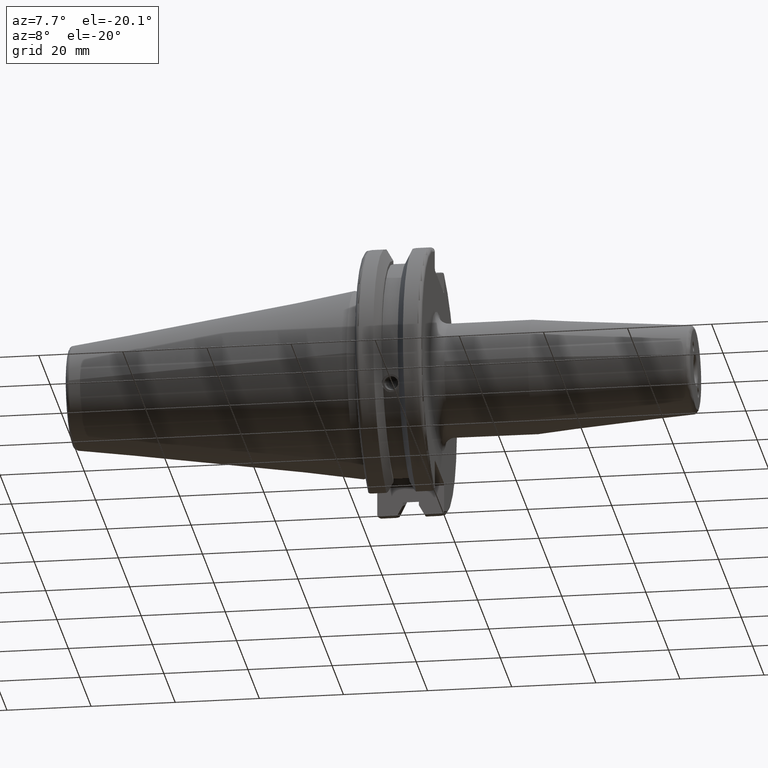
[diagram: clean part render]
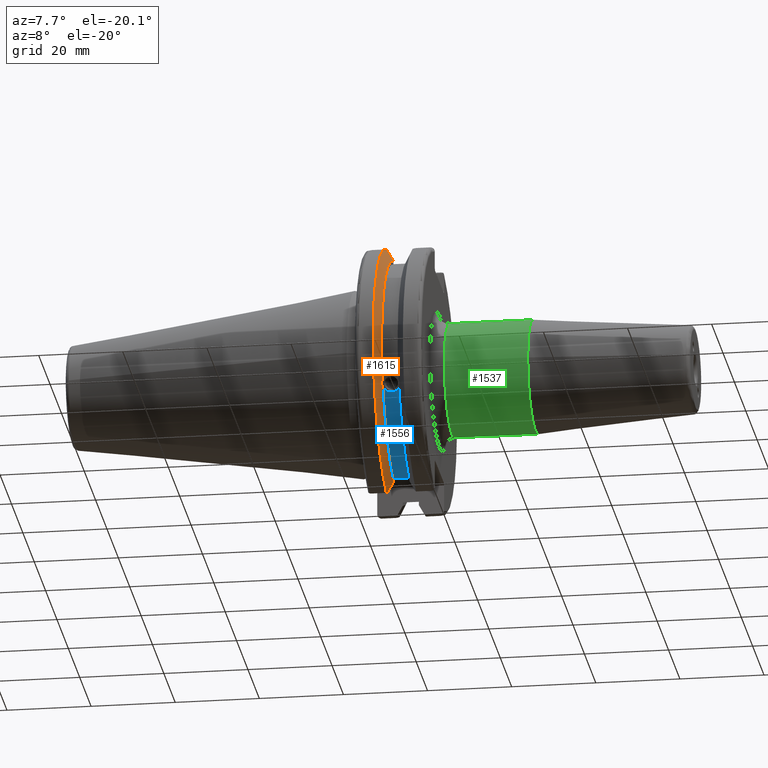
[diagram: same view with three faces highlighted in distinct colors, each labeled with its STEP entity id]
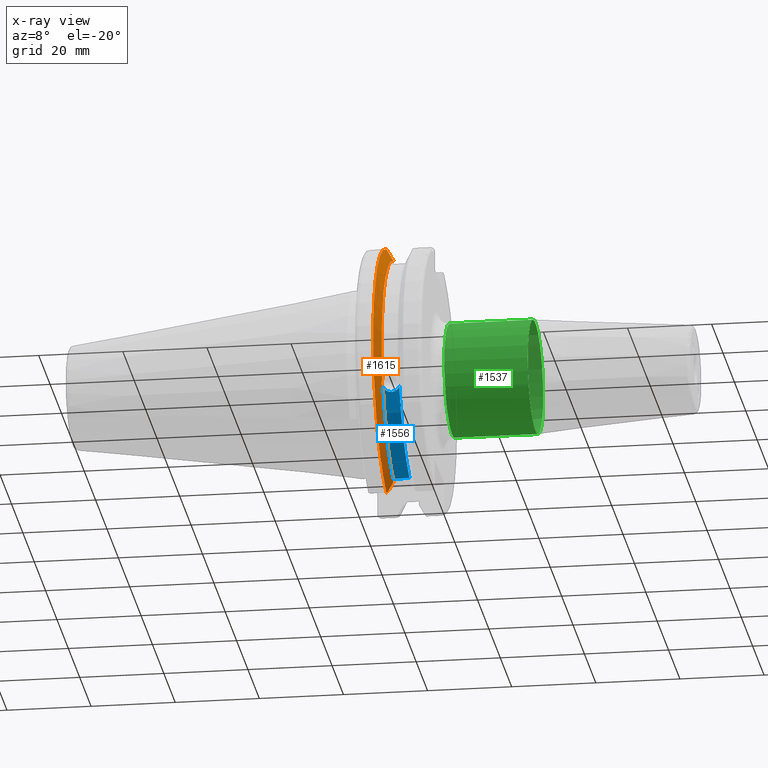
[diagram: x-ray of the same camera — body ghosted, the three highlighted faces saturated]
A machine part, auxiliary view with three faces highlighted in distinct colors.
The next image is the same camera in x-ray (body ghosted, the three faces saturated) — at least one of them is partly hidden behind the body in this view.
Their STEP definitions:

[orange] entity #1615 — the highlighted conical surface has half-angle 60 deg.
#25=(
BOUNDED_CURVE()
B_SPLINE_CURVE(2,(#2911,#2912,#2913),.UNSPECIFIED.,.F.,.F.)
B_SPLINE_CURVE_WITH_KNOTS((3,3),(0.,0.276549142796136),.UNSPECIFIED.)
CURVE()
GEOMETRIC_REPRESENTATION_ITEM()
RATIONAL_B_SPLINE_CURVE((1.,1.00095203903316,1.00031614444813))
REPRESENTATION_ITEM('')
);
#26=(
BOUNDED_CURVE()
B_SPLINE_CURVE(2,(#2923,#2924,#2925),.UNSPECIFIED.,.F.,.F.)
B_SPLINE_CURVE_WITH_KNOTS((3,3),(0.0550586467392022,0.33160778953585),
 .UNSPECIFIED.)
CURVE()
GEOMETRIC_REPRESENTATION_ITEM()
RATIONAL_B_SPLINE_CURVE((1.00031614445148,1.00095203904325,1.))
REPRESENTATION_ITEM('')
);
#27=(
BOUNDED_CURVE()
B_SPLINE_CURVE(2,(#2958,#2959,#2960),.UNSPECIFIED.,.F.,.F.)
B_SPLINE_CURVE_WITH_KNOTS((3,3),(0.,0.0639048713676282),.UNSPECIFIED.)
CURVE()
GEOMETRIC_REPRESENTATION_ITEM()
RATIONAL_B_SPLINE_CURVE((1.,1.00028444218284,1.00047644010574))
REPRESENTATION_ITEM('')
);
#28=(
BOUNDED_CURVE()
B_SPLINE_CURVE(2,(#2966,#2967,#2968),.UNSPECIFIED.,.F.,.F.)
B_SPLINE_CURVE_WITH_KNOTS((3,3),(0.329353533631205,0.393258405001025),
 .UNSPECIFIED.)
CURVE()
GEOMETRIC_REPRESENTATION_ITEM()
RATIONAL_B_SPLINE_CURVE((1.00047644010572,1.00028444218283,1.))
REPRESENTATION_ITEM('')
);
#37=B_SPLINE_CURVE_WITH_KNOTS('',3,(#2529,#2530,#2531,#2532,#2533,#2534,
#2535,#2536,#2537,#2538,#2539,#2540,#2541,#2542),.UNSPECIFIED.,.F.,.F.,
(4,2,2,2,2,2,4),(0.451995700189024,0.464547828547663,0.504528771685167,
0.544509714822672,0.584490657960178,0.624471601097683,0.63702372945632),
 .UNSPECIFIED.);
#263=FACE_OUTER_BOUND('',#371,.T.);
#371=EDGE_LOOP('',(#1501,#1502,#1503,#1504,#1505,#1506,#1507,#1508));
#600=CIRCLE('',#1717,28.9593772964944);
#622=CIRCLE('',#1773,31.75);
#640=CIRCLE('',#1824,28.9593772964944);
#693=VERTEX_POINT('',#2526);
#694=VERTEX_POINT('',#2528);
#711=VERTEX_POINT('',#2621);
#771=VERTEX_POINT('',#2908);
#772=VERTEX_POINT('',#2910);
#775=VERTEX_POINT('',#2922);
#779=VERTEX_POINT('',#2956);
#780=VERTEX_POINT('',#2962);
#868=EDGE_CURVE('',#694,#693,#37,.T.);
#892=EDGE_CURVE('',#694,#711,#600,.T.);
#975=EDGE_CURVE('',#772,#771,#25,.T.);
#981=EDGE_CURVE('',#775,#711,#26,.T.);
#989=EDGE_CURVE('',#779,#771,#27,.T.);
#991=EDGE_CURVE('',#779,#780,#622,.T.);
#992=EDGE_CURVE('',#775,#780,#28,.T.);
#1036=EDGE_CURVE('',#772,#693,#640,.T.);
#1501=ORIENTED_EDGE('',*,*,#868,.T.);
#1502=ORIENTED_EDGE('',*,*,#1036,.F.);
#1503=ORIENTED_EDGE('',*,*,#975,.T.);
#1504=ORIENTED_EDGE('',*,*,#989,.F.);
#1505=ORIENTED_EDGE('',*,*,#991,.T.);
#1506=ORIENTED_EDGE('',*,*,#992,.F.);
#1507=ORIENTED_EDGE('',*,*,#981,.T.);
#1508=ORIENTED_EDGE('',*,*,#892,.F.);
#1526=CONICAL_SURFACE('',#1823,30.3546886482472,1.0471975511966);
#1615=ADVANCED_FACE('',(#263),#1526,.T.);
#1717=AXIS2_PLACEMENT_3D('',#2622,#2016,#2017);
#1773=AXIS2_PLACEMENT_3D('',#2964,#2169,#2170);
#1823=AXIS2_PLACEMENT_3D('',#3084,#2290,#2291);
#1824=AXIS2_PLACEMENT_3D('',#3085,#2292,#2293);
#2016=DIRECTION('center_axis',(1.,0.,0.));
#2017=DIRECTION('ref_axis',(0.,0.,-1.));
#2169=DIRECTION('center_axis',(1.,0.,0.));
#2170=DIRECTION('ref_axis',(0.,0.,-1.));
#2290=DIRECTION('center_axis',(-1.,0.,0.));
#2291=DIRECTION('ref_axis',(0.,-1.,-1.22464679914735E-16));
#2292=DIRECTION('center_axis',(1.,0.,0.));
#2293=DIRECTION('ref_axis',(0.,0.,-1.));
#2526=CARTESIAN_POINT('',(9.2191,-27.4956274489925,-9.09043478536245));
#2528=CARTESIAN_POINT('',(9.2191,-26.9060914640648,-10.7101715919071));
#2529=CARTESIAN_POINT('Ctrl Pts',(9.2191,-26.9060914640648,-10.7101715919071));
#2530=CARTESIAN_POINT('Ctrl Pts',(9.20497959280038,-26.9406927482839,-10.6893765730703));
#2531=CARTESIAN_POINT('Ctrl Pts',(9.19150701821433,-26.9744191989197,-10.6676007180673));
#2532=CARTESIAN_POINT('Ctrl Pts',(9.13811855884095,-27.1113422433189,-10.5723885976054));
#2533=CARTESIAN_POINT('Ctrl Pts',(9.09998029158246,-27.2180531796526,-10.4801333026531));
#2534=CARTESIAN_POINT('Ctrl Pts',(9.04778935539424,-27.3968610665578,-10.2639559818059));
#2535=CARTESIAN_POINT('Ctrl Pts',(9.0341,-27.4684373304961,-10.139516340139));
#2536=CARTESIAN_POINT('Ctrl Pts',(9.0341,-27.559599249844,-9.8890510252165));
#2537=CARTESIAN_POINT('Ctrl Pts',(9.04778935539424,-27.5847569104122,-9.74771639360671));
#2538=CARTESIAN_POINT('Ctrl Pts',(9.09998029158246,-27.5867382255984,-9.46717946402648));
#2539=CARTESIAN_POINT('Ctrl Pts',(9.13811855884095,-27.5642934663232,-9.32791534028655));
#2540=CARTESIAN_POINT('Ctrl Pts',(9.19150701821434,-27.5206055003512,-9.16696618806877));
#2541=CARTESIAN_POINT('Ctrl Pts',(9.20497959280038,-27.5087667900418,-9.12860597076217));
#2542=CARTESIAN_POINT('Ctrl Pts',(9.2191,-27.4956274489925,-9.09043478536245));
#2621=CARTESIAN_POINT('',(9.2191,-8.19,-27.7771386827498));
#2622=CARTESIAN_POINT('Origin',(9.2191,0.,0.));
#2908=CARTESIAN_POINT('',(7.88668530351257,-8.19,30.1755016258903));
#2910=CARTESIAN_POINT('',(9.2191,-8.19,27.7771386827498));
#2911=CARTESIAN_POINT('Ctrl Pts',(9.2191,-8.19,27.7771386827498));
#2912=CARTESIAN_POINT('Ctrl Pts',(8.58046356152393,-8.19,28.9303689539705));
#2913=CARTESIAN_POINT('Ctrl Pts',(7.88668530351257,-8.19,30.1755016258903));
#2922=CARTESIAN_POINT('',(7.88668530351256,-8.19,-30.1755016258903));
#2923=CARTESIAN_POINT('Ctrl Pts',(7.88668530351256,-8.19,-30.1755016258903));
#2924=CARTESIAN_POINT('Ctrl Pts',(8.5804635615235,-8.19,-28.9303689539712));
#2925=CARTESIAN_POINT('Ctrl Pts',(9.2191,-8.19,-27.7771386827498));
#2956=CARTESIAN_POINT('',(7.60793323092436,-8.67204822802685,30.5427254764662));
#2958=CARTESIAN_POINT('Ctrl Pts',(7.60793323092436,-8.67204822802686,30.5427254764662));
#2959=CARTESIAN_POINT('Ctrl Pts',(7.74899148121626,-8.42917748262648,30.357706789263));
#2960=CARTESIAN_POINT('Ctrl Pts',(7.88668530351257,-8.19,30.1755016258903));
#2962=CARTESIAN_POINT('',(7.60793323092436,-8.67204822802685,-30.5427254764662));
#2964=CARTESIAN_POINT('Origin',(7.60793323092436,0.,0.));
#2966=CARTESIAN_POINT('Ctrl Pts',(7.88668530351256,-8.19,-30.1755016258903));
#2967=CARTESIAN_POINT('Ctrl Pts',(7.74899148121159,-8.42917748263467,-30.3577067892692));
#2968=CARTESIAN_POINT('Ctrl Pts',(7.60793323092435,-8.67204822802687,-30.5427254764662));
#3084=CARTESIAN_POINT('Origin',(8.41351661546218,0.,0.));
#3085=CARTESIAN_POINT('Origin',(9.2191,0.,0.));

[blue] entity #1556 — the highlighted cylindrical surface (partial cylindrical patch) has radius 28.15 mm, axis along (1, 0, 0).
#38=B_SPLINE_CURVE_WITH_KNOTS('',3,(#2546,#2547,#2548,#2549,#2550,#2551,
#2552,#2553,#2554,#2555,#2556,#2557,#2558,#2559,#2560),.UNSPECIFIED.,.F.,
 .F.,(4,2,2,3,2,2,4),(-0.231446873660085,-0.158271583089134,-0.079135791544567,
0.,0.0791357915445672,0.158271583089134,0.231446873660466),
 .UNSPECIFIED.);
#158=CYLINDRICAL_SURFACE('',#1714,28.15);
#204=FACE_OUTER_BOUND('',#304,.T.);
#304=EDGE_LOOP('',(#1189,#1190,#1191,#1192));
#406=LINE('',#2619,#502);
#502=VECTOR('',#2013,10.);
#598=CIRCLE('',#1713,28.15);
#599=CIRCLE('',#1715,28.15);
#695=VERTEX_POINT('',#2543);
#696=VERTEX_POINT('',#2545);
#709=VERTEX_POINT('',#2613);
#710=VERTEX_POINT('',#2617);
#870=EDGE_CURVE('',#696,#695,#38,.T.);
#888=EDGE_CURVE('',#696,#709,#598,.T.);
#890=EDGE_CURVE('',#695,#710,#599,.T.);
#891=EDGE_CURVE('',#710,#709,#406,.T.);
#1189=ORIENTED_EDGE('',*,*,#870,.T.);
#1190=ORIENTED_EDGE('',*,*,#890,.T.);
#1191=ORIENTED_EDGE('',*,*,#891,.T.);
#1192=ORIENTED_EDGE('',*,*,#888,.F.);
#1556=ADVANCED_FACE('',(#204),#158,.T.);
#1713=AXIS2_PLACEMENT_3D('',#2614,#2006,#2007);
#1714=AXIS2_PLACEMENT_3D('',#2616,#2009,#2010);
#1715=AXIS2_PLACEMENT_3D('',#2618,#2011,#2012);
#2006=DIRECTION('center_axis',(1.,0.,0.));
#2007=DIRECTION('ref_axis',(0.,0.,-1.));
#2009=DIRECTION('center_axis',(1.,0.,0.));
#2010=DIRECTION('ref_axis',(0.,1.,0.));
#2011=DIRECTION('center_axis',(1.,0.,0.));
#2012=DIRECTION('ref_axis',(0.,0.,-1.));
#2013=DIRECTION('',(1.,0.,0.));
#2543=CARTESIAN_POINT('',(9.2191,-26.1451788594704,-10.4332220529567));
#2545=CARTESIAN_POINT('',(13.0491,-26.1451788594704,-10.4332220529567));
#2546=CARTESIAN_POINT('Ctrl Pts',(13.0491,-26.1451788594704,-10.4332220529567));
#2547=CARTESIAN_POINT('Ctrl Pts',(12.9428694290343,-26.0576536126147,-10.6525563316815));
#2548=CARTESIAN_POINT('Ctrl Pts',(12.791379862294,-25.9751489313128,-10.8509873904882));
#2549=CARTESIAN_POINT('Ctrl Pts',(12.4326293734259,-25.8346412777187,-11.1816210830117));
#2550=CARTESIAN_POINT('Ctrl Pts',(12.1965549887012,-25.7695111693635,-11.3298867884858));
#2551=CARTESIAN_POINT('Ctrl Pts',(11.6791874573612,-25.6822868299377,-11.5262389251846));
#2552=CARTESIAN_POINT('Ctrl Pts',(11.3978859718152,-25.6603958057616,-11.5743935949859));
#2553=CARTESIAN_POINT('Ctrl Pts',(11.1341,-25.6603958057616,-11.5743935949859));
#2554=CARTESIAN_POINT('Ctrl Pts',(10.8703140281848,-25.6603958057616,-11.5743935949859));
#2555=CARTESIAN_POINT('Ctrl Pts',(10.5890125426388,-25.6822868299377,-11.5262389251846));
#2556=CARTESIAN_POINT('Ctrl Pts',(10.0716450112988,-25.7695111693635,-11.3298867884858));
#2557=CARTESIAN_POINT('Ctrl Pts',(9.83557062657411,-25.8346412777187,-11.1816210830117));
#2558=CARTESIAN_POINT('Ctrl Pts',(9.4768201377051,-25.9751489313131,-10.8509873904873));
#2559=CARTESIAN_POINT('Ctrl Pts',(9.32533057097183,-26.0576536126096,-10.6525563316942));
#2560=CARTESIAN_POINT('Ctrl Pts',(9.2191,-26.1451788594704,-10.4332220529567));
#2613=CARTESIAN_POINT('',(13.0491,-8.19,-26.932255754021));
#2614=CARTESIAN_POINT('Origin',(13.0491,0.,0.));
#2616=CARTESIAN_POINT('Origin',(11.1341,0.,0.));
#2617=CARTESIAN_POINT('',(9.2191,-8.19,-26.932255754021));
#2618=CARTESIAN_POINT('Origin',(9.2191,0.,0.));
#2619=CARTESIAN_POINT('',(11.1341,-8.19,-26.932255754021));

[green] entity #1537 — the highlighted cylindrical surface (bore or boss wall) has radius 13.5 mm, axis along (1, 0, 0).
#148=CYLINDRICAL_SURFACE('',#1668,13.5);
#185=FACE_OUTER_BOUND('',#278,.T.);
#278=EDGE_LOOP('',(#1080,#1081,#1082,#1083,#1084));
#379=LINE('',#2349,#475);
#475=VECTOR('',#1892,13.5);
#576=CIRCLE('',#1662,13.5);
#577=CIRCLE('',#1664,13.5);
#580=CIRCLE('',#1667,13.5);
#654=VERTEX_POINT('',#2337);
#655=VERTEX_POINT('',#2341);
#656=VERTEX_POINT('',#2342);
#818=EDGE_CURVE('',#654,#654,#576,.T.);
#819=EDGE_CURVE('',#655,#656,#577,.T.);
#822=EDGE_CURVE('',#656,#655,#580,.T.);
#823=EDGE_CURVE('',#654,#655,#379,.T.);
#1080=ORIENTED_EDGE('',*,*,#818,.F.);
#1081=ORIENTED_EDGE('',*,*,#823,.T.);
#1082=ORIENTED_EDGE('',*,*,#822,.F.);
#1083=ORIENTED_EDGE('',*,*,#819,.F.);
#1084=ORIENTED_EDGE('',*,*,#823,.F.);
#1537=ADVANCED_FACE('',(#185),#148,.T.);
#1662=AXIS2_PLACEMENT_3D('',#2339,#1878,#1879);
#1664=AXIS2_PLACEMENT_3D('',#2343,#1882,#1883);
#1667=AXIS2_PLACEMENT_3D('',#2347,#1888,#1889);
#1668=AXIS2_PLACEMENT_3D('',#2348,#1890,#1891);
#1878=DIRECTION('center_axis',(1.,0.,0.));
#1879=DIRECTION('ref_axis',(0.,0.,-1.));
#1882=DIRECTION('center_axis',(-1.,0.,0.));
#1883=DIRECTION('ref_axis',(0.,-1.,-1.22464679914735E-16));
#1888=DIRECTION('center_axis',(-1.,0.,0.));
#1889=DIRECTION('ref_axis',(0.,-1.,-1.22464679914735E-16));
#1890=DIRECTION('center_axis',(1.,0.,0.));
#1891=DIRECTION('ref_axis',(0.,1.,0.));
#1892=DIRECTION('',(-1.,0.,0.));
#2337=CARTESIAN_POINT('',(41.8813857914758,-13.5,-1.65327317884893E-15));
#2339=CARTESIAN_POINT('Origin',(41.8813857914758,0.,0.));
#2341=CARTESIAN_POINT('',(22.05,-13.5,-1.65327317884893E-15));
#2342=CARTESIAN_POINT('',(22.05,-1.65327317884893E-15,-13.5));
#2343=CARTESIAN_POINT('Origin',(22.05,0.,0.));
#2347=CARTESIAN_POINT('Origin',(22.05,0.,0.));
#2348=CARTESIAN_POINT('Origin',(30.4656928957379,0.,0.));
#2349=CARTESIAN_POINT('',(30.4656928957379,-13.5,-1.65327317884893E-15));